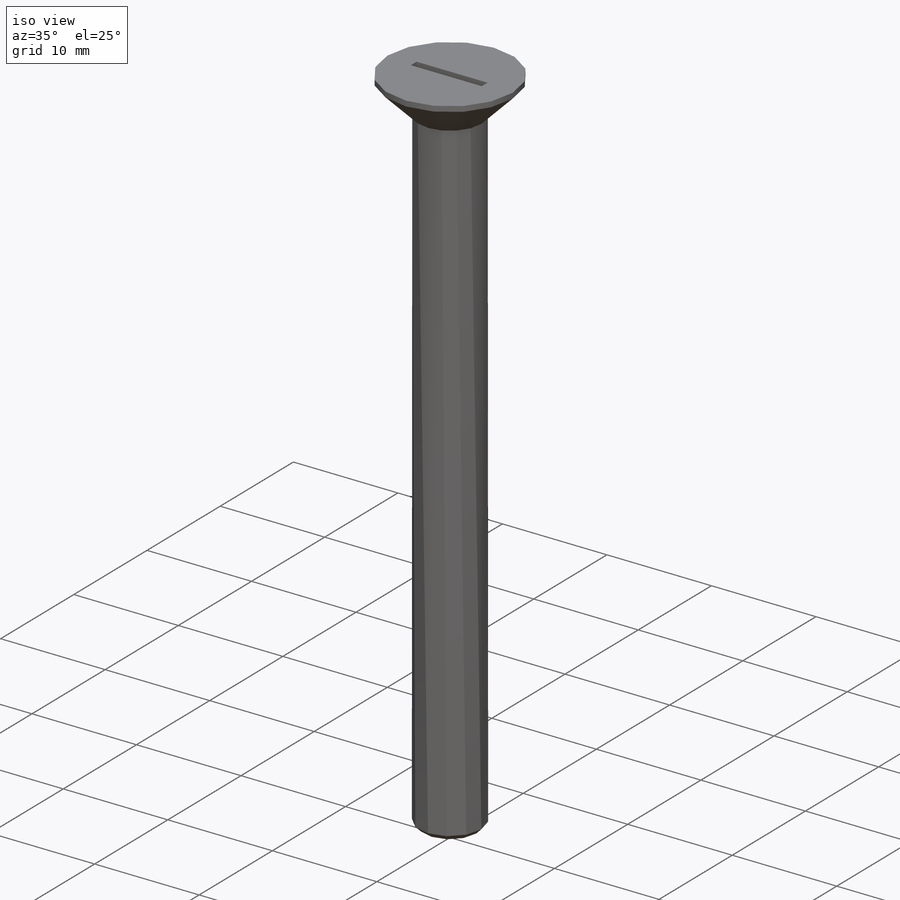
[diagram: iso view]
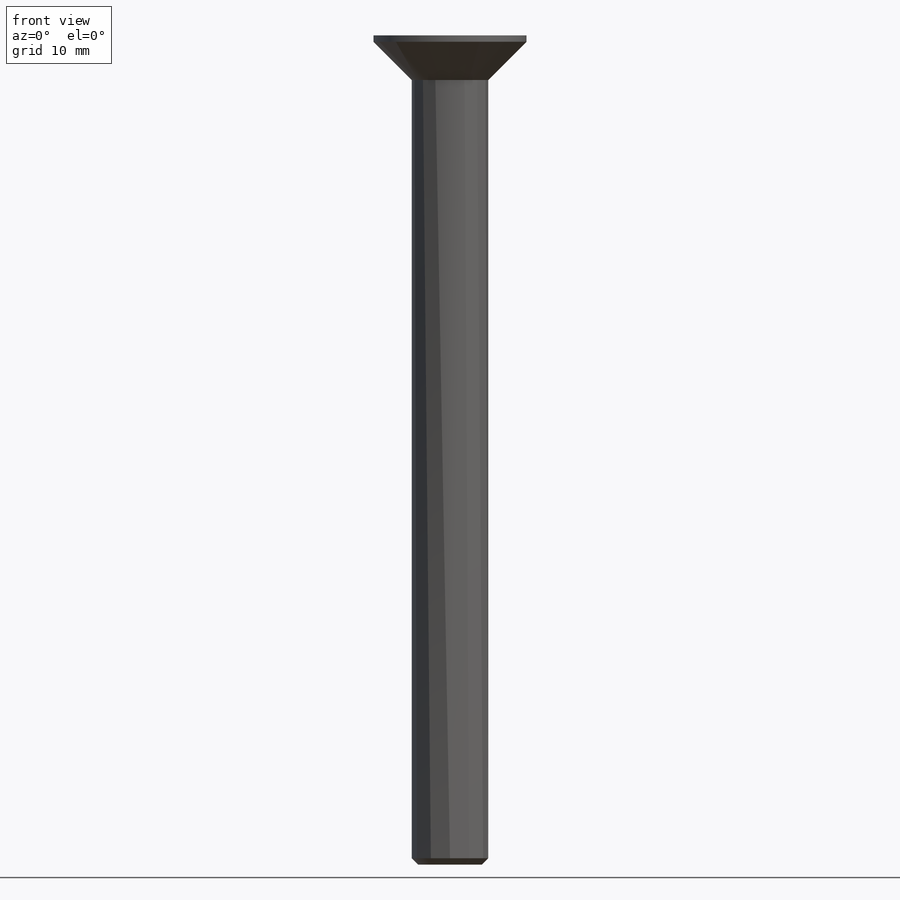
[diagram: front view]
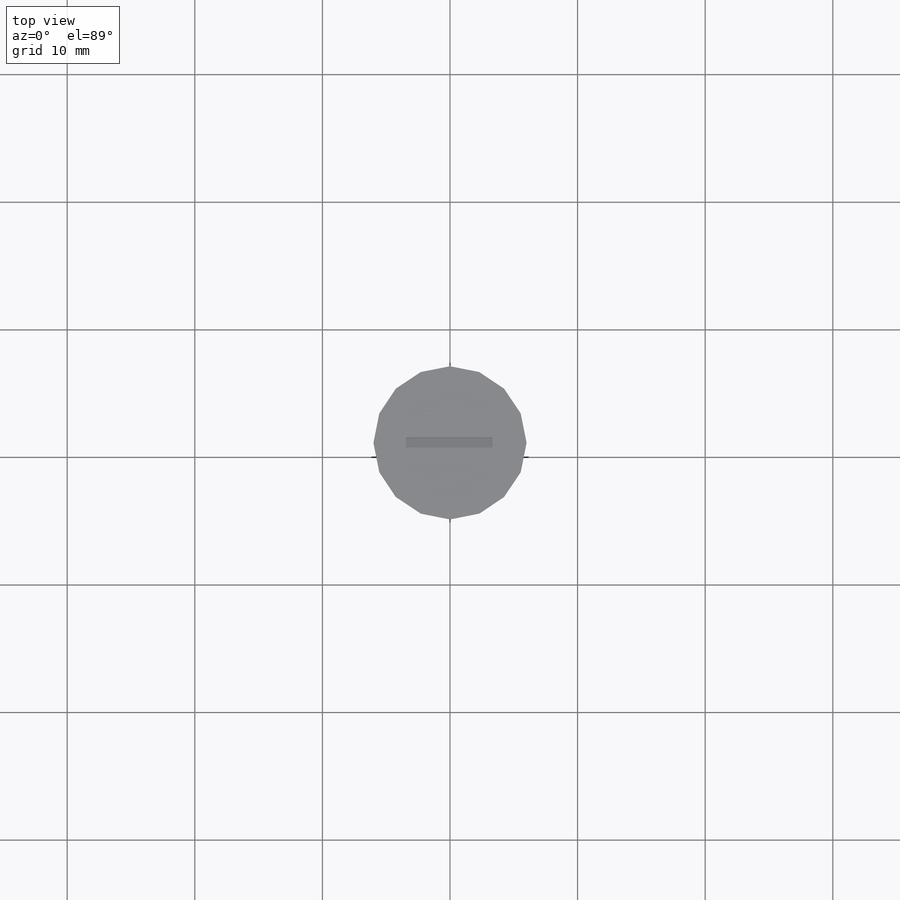
[diagram: top view]
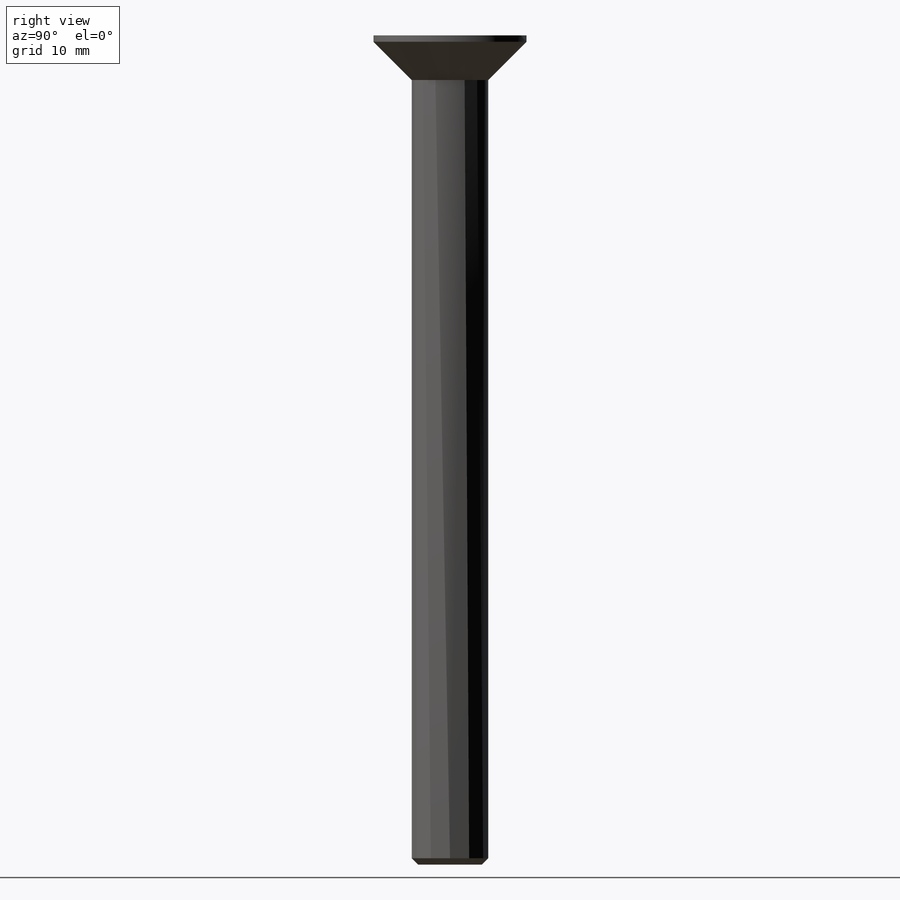
[diagram: right view]
SOLIDWORKS PART (.sldprt)
format: sldprt  version: not decoded by parser v0  size: 115,712 bytes
history: native  units: mm
features: plane x3, sketch x2, material x1, revolve x1, cut_extrude x1, chamfer x1 (+10 scaffold rows collapsed)
feature tree (19):
  scaffold x10  (default folders/planes/origin — collapsed)
  material  "材質 <未指定>"
  plane  "前基準面"
  plane  "上基準面"
  plane  "右基準面"
  sketch  "草圖1"  dims[c1.D1=0.4mm c1.D2=0.7mm c1.D3=~10.477801mm c2.D2=0.5mm c2.D3=3.0mm c2.D4=6.0mm c2.D5=~7.436305mm c3.D5=45.0deg c3.D6=0.7mm c3.D7=1.5mm c3.D1=65.0mm]
  revolve  "旋轉1"  Angle=360deg
  sketch  "草圖2"  dims[D1=0.8mm D2=0.4mm]
  cut_extrude  "除料-伸長1"  Depth=0.7mm
  chamfer  "導角1"  Distance=0.5mm Angle=45deg
decode coverage: 5 of 5 modeling features carry decoded parameters
note: ~ marks probable driven/reference dimensions
note: suppression state not decoded; provenance and decode notes live in map.json
